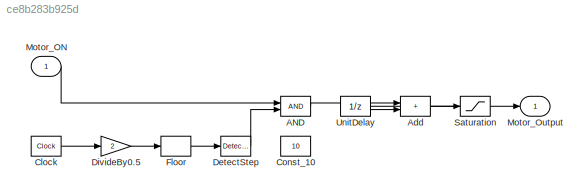
MODEL slx_ce8b283b925d
KIND model
CONFIG AbsTol = auto
CONFIG EnableMultiTasking = off
CONFIG FixedStep = auto
CONFIG MaxStep = auto
CONFIG MinStep = auto
CONFIG RelTol = 1e-3
CONFIG SampleTimeConstraint = Unconstrained
CONFIG SolverName = VariableStepAuto
CONFIG StartTime = 0.0
CONFIG StopTime = 10.0
BLOCK [Logic] AND
  AllPortsSameDT = off
  OutDataTypeStr = boolean
BLOCK [Sum] Add
  IconShape = rectangular
BLOCK [Clock] Clock
BLOCK [Constant] Const_10
  Value = 10
BLOCK [Reference] DetectStep  REF=simulink/Logic and Bit
Operations/Detect
Increase
  SourceBlock = simulink/Logic and Bit\nOperations/Detect\nIncrease
  SourceType = Detect Increase
BLOCK [Gain] DivideBy0.5
  Gain = 2
BLOCK [Rounding] Floor
BLOCK [Inport] Motor_ON
BLOCK [Outport] Motor_Output
BLOCK [Saturate] Saturation
  LowerLimit = 0
  UpperLimit = 100
BLOCK [UnitDelay] UnitDelay
  HasFrameUpgradeWarning = on
  SampleTime = 0.5
LINE AND:1 -> Add:1
LINE Add:1 -> Saturation:1
LINE Clock:1 -> DivideBy0.5:1
LINE DetectStep:1 -> AND:2
LINE DivideBy0.5:1 -> Floor:1
LINE Floor:1 -> DetectStep:1
LINE Motor_ON:1 -> AND:1
NET Saturation:1 -> Motor_Output:1, UnitDelay:1
LINE UnitDelay:1 -> Add:2
note: NET lines group one-source signal fan-out (src -> all destinations, sorted); 1:1 wires keep LINE
